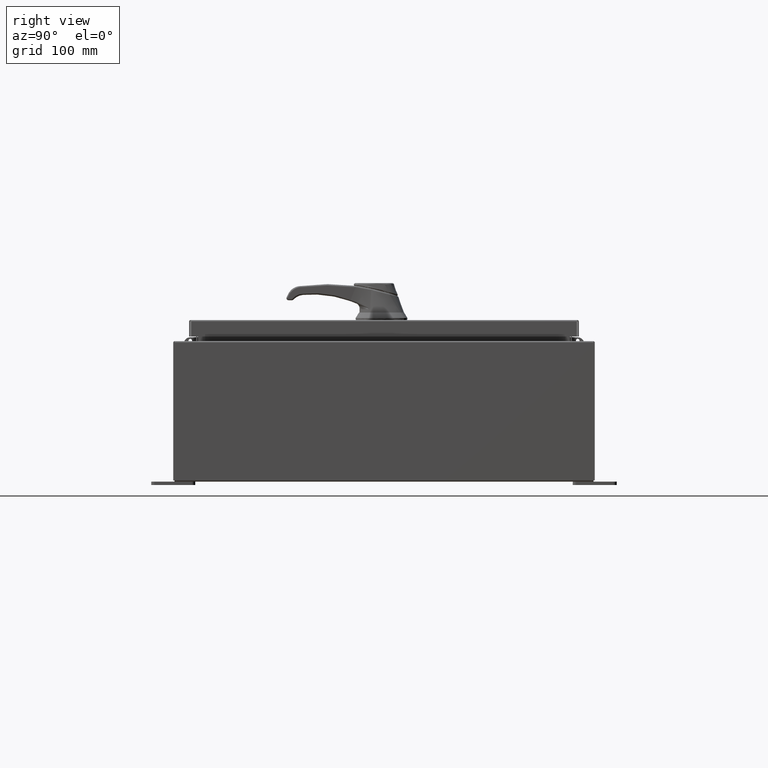
[diagram: clean part render]
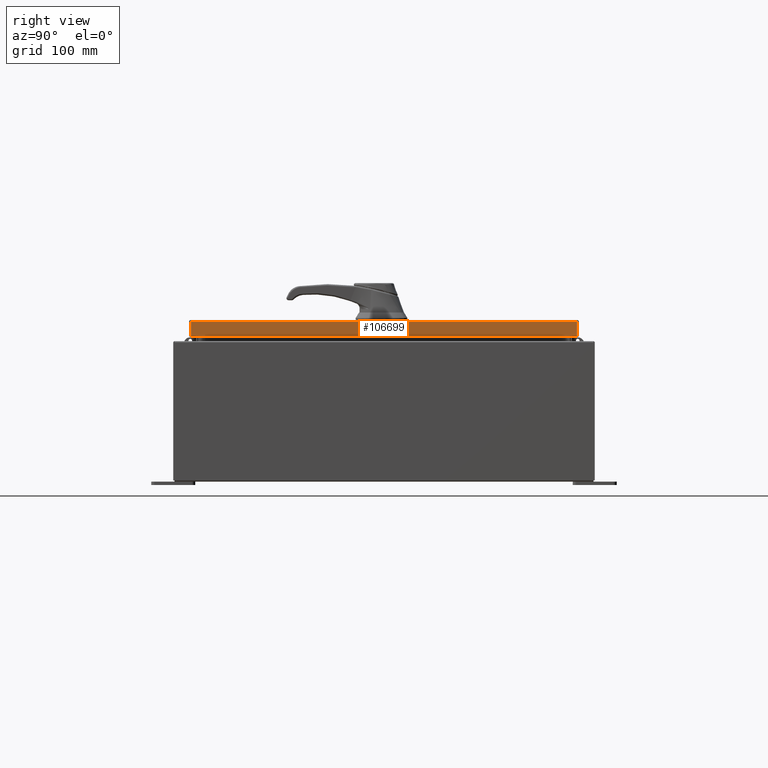
[diagram: same view with one face highlighted and labeled with its STEP entity id]
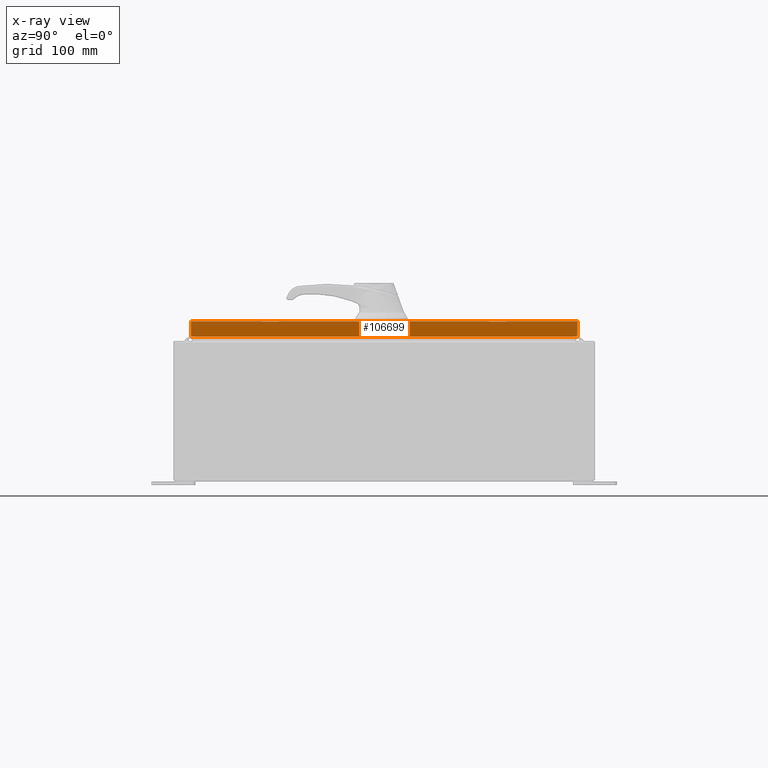
[diagram: x-ray of the same camera — body ghosted, the highlighted face saturated]
A machine part, right view. The second image highlights one B-rep face of the part: STEP entity #106699.
The next image is the same camera in x-ray: the body ghosted, the highlighted face saturated — about 0% of this face is hidden behind the body in this view.
In plain terms, the highlighted planar face has unit normal (1, 0, 0).
Its self-contained STEP definition (entity closure, byte-faithful):
#442 = DIRECTION ( 'NONE',  ( 2.532419924601866100E-015, 0.0000000000000000000, -1.000000000000000000 ) ) ;
#6683 = EDGE_CURVE ( 'NONE', #105495, #105173, #13084, .T. ) ;
#8845 = ORIENTED_EDGE ( 'NONE', *, *, #64981, .F. ) ;
#11939 = DIRECTION ( 'NONE',  ( -2.532419924601866100E-015, -6.982962677686267500E-015, 1.000000000000000000 ) ) ;
#12209 = ORIENTED_EDGE ( 'NONE', *, *, #25269, .F. ) ;
#13084 = LINE ( 'NONE', #83019, #102493 ) ;
#14406 = ORIENTED_EDGE ( 'NONE', *, *, #6683, .T. ) ;
#21894 = VECTOR ( 'NONE', #33500, 39.37007874015748100 ) ;
#22367 = DIRECTION ( 'NONE',  ( 0.0000000000000000000, -1.000000000000000000, 0.0000000000000000000 ) ) ;
#24754 = CARTESIAN_POINT ( 'NONE',  ( 14.07800000000000300, 11.00515786437626900, 1.127608279835416400E-013 ) ) ;
#25269 = EDGE_CURVE ( 'NONE', #45836, #105173, #47251, .T. ) ;
#25948 = CARTESIAN_POINT ( 'NONE',  ( 14.07800000000000300, -11.00515786437626900, -0.08770000000000008300 ) ) ;
#31922 = AXIS2_PLACEMENT_3D ( 'NONE', #86821, #52321, #442 ) ;
#33500 = DIRECTION ( 'NONE',  ( -2.532419924601866100E-015, -6.982962677686267500E-015, 1.000000000000000000 ) ) ;
#44862 = CARTESIAN_POINT ( 'NONE',  ( 14.07800000000000500, -11.00515786437626200, -0.9376999999999997600 ) ) ;
#45573 = EDGE_CURVE ( 'NONE', #94301, #105495, #96478, .T. ) ;
#45836 = VERTEX_POINT ( 'NONE', #44862 ) ;
#47251 = LINE ( 'NONE', #98266, #96037 ) ;
#52321 = DIRECTION ( 'NONE',  ( 1.000000000000000000, 0.0000000000000000000, 2.532419924601866100E-015 ) ) ;
#64981 = EDGE_CURVE ( 'NONE', #94301, #45836, #87414, .T. ) ;
#70384 = FACE_OUTER_BOUND ( 'NONE', #98483, .T. ) ;
#72562 = CARTESIAN_POINT ( 'NONE',  ( 14.07800000000000500, -11.09399999999999900, -0.9376999999999997600 ) ) ;
#81264 = DIRECTION ( 'NONE',  ( 0.0000000000000000000, -1.000000000000000000, 0.0000000000000000000 ) ) ;
#83019 = CARTESIAN_POINT ( 'NONE',  ( 14.07800000000000300, 0.0000000000000000000, -0.08770000000000008300 ) ) ;
#86821 = CARTESIAN_POINT ( 'NONE',  ( 14.07800000000000300, 0.0000000000000000000, 3.591222135455665100E-014 ) ) ;
#87414 = LINE ( 'NONE', #72562, #90119 ) ;
#90119 = VECTOR ( 'NONE', #81264, 39.37007874015748100 ) ;
#94301 = VERTEX_POINT ( 'NONE', #98201 ) ;
#96037 = VECTOR ( 'NONE', #11939, 39.37007874015748100 ) ;
#96478 = LINE ( 'NONE', #24754, #21894 ) ;
#98201 = CARTESIAN_POINT ( 'NONE',  ( 14.07800000000000500, 11.00515786437627400, -0.9376999999999997600 ) ) ;
#98266 = CARTESIAN_POINT ( 'NONE',  ( 14.07800000000000300, -11.00515786437626900, -0.07469999999999980800 ) ) ;
#98483 = EDGE_LOOP ( 'NONE', ( #12209, #8845, #110053, #14406 ) ) ;
#99842 = CARTESIAN_POINT ( 'NONE',  ( 14.07800000000000300, 11.00515786437627100, -0.08770000000000008300 ) ) ;
#102493 = VECTOR ( 'NONE', #22367, 39.37007874015748100 ) ;
#104188 = PLANE ( 'NONE',  #31922 ) ;
#105173 = VERTEX_POINT ( 'NONE', #25948 ) ;
#105495 = VERTEX_POINT ( 'NONE', #99842 ) ;
#106699 = ADVANCED_FACE ( 'NONE', ( #70384 ), #104188, .T. ) ;
#110053 = ORIENTED_EDGE ( 'NONE', *, *, #45573, .T. ) ;